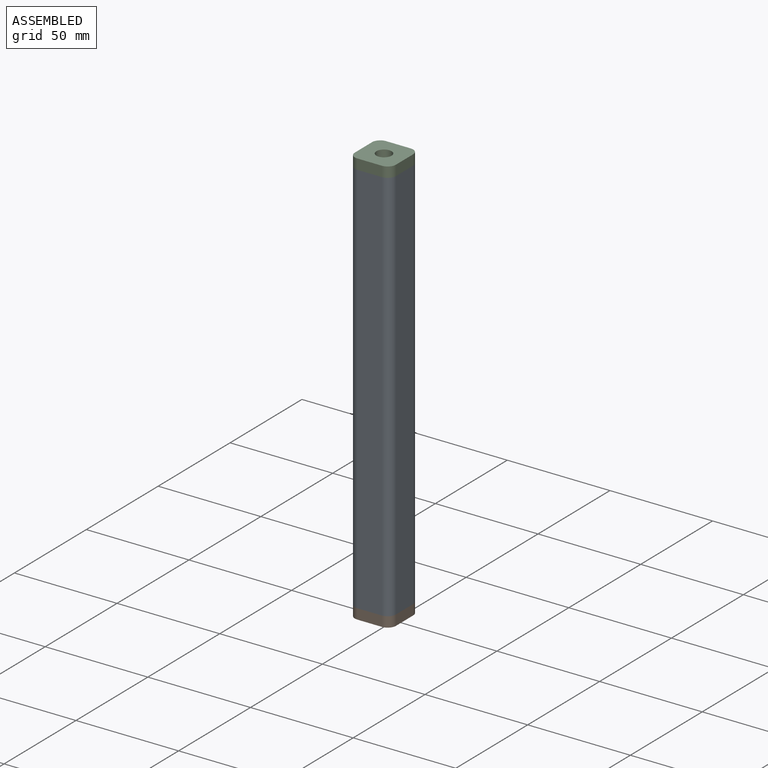
[diagram: assembled view]
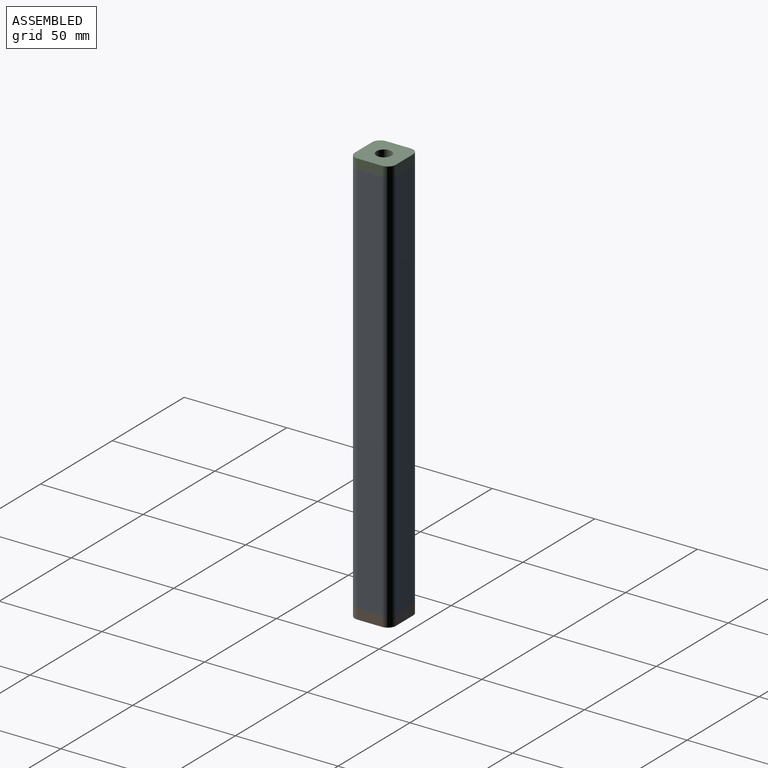
[diagram: assembled view, second angle]
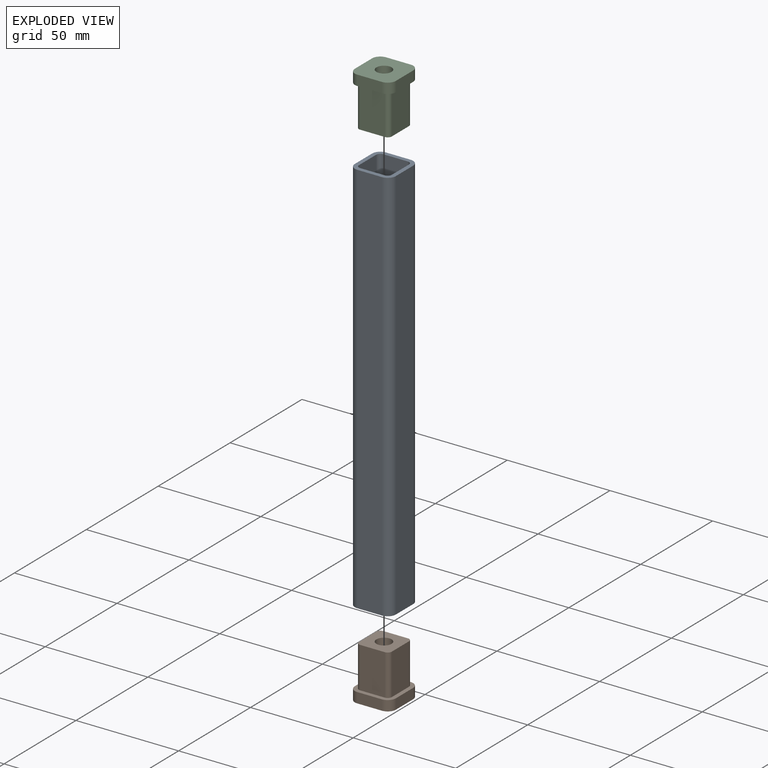
[diagram: exploded view]
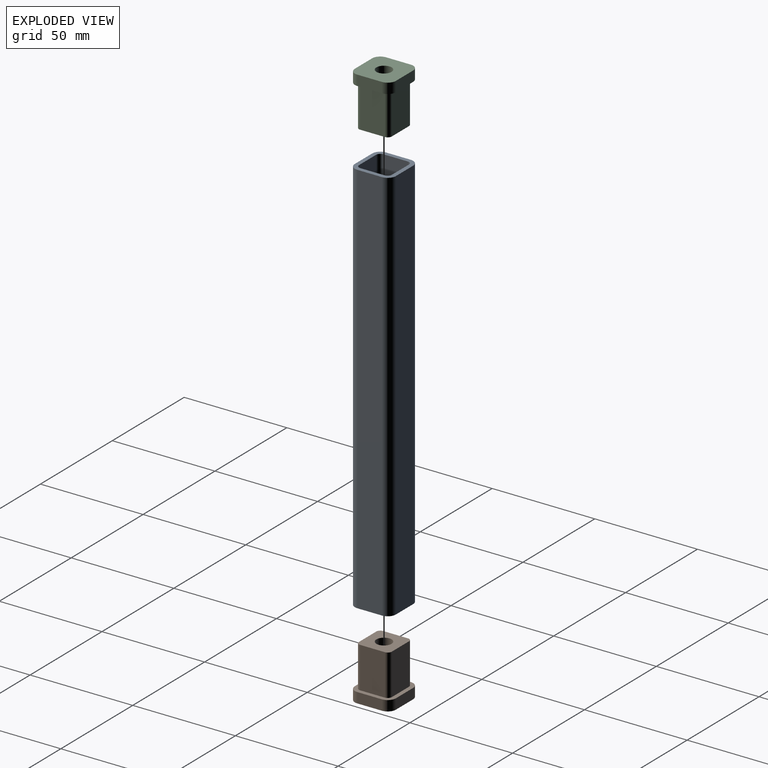
[diagram: exploded view, second angle]
ASSEMBLY  parts=3 mates=3
PART A: 18 faces, bbox 24.4x24.4x193 mm
  f0: plane 193x10.39mm, normal (-0.5,0.87,0), area 2316mm2, adj f4,f7,f16,f17
  f1: plane 193x10.39mm, normal (0.87,0.5,0), area 2316mm2, adj f4,f5,f16,f17
  f2: plane 193x10.39mm, normal (0.5,-0.87,0), area 2316mm2, adj f5,f6,f16,f17
  f3: plane 193x10.39mm, normal (-0.87,-0.5,0), area 2316mm2, adj f6,f7,f16,f17
  f4: cylinder r=4mm len=193mm, axis (0,0,1), area 1212.5mm2, adj f0,f1,f16,f17
  f5: cylinder r=4mm len=193mm, axis (0,0,1), area 1212.5mm2, adj f1,f2,f16,f17
  f6: cylinder r=4mm len=193mm, axis (0,0,1), area 1212.5mm2, adj f2,f3,f16,f17
  f7: cylinder r=4mm len=193mm, axis (0,0,1), area 1212.5mm2, adj f0,f3,f16,f17
  f8: plane 193x10.39mm, normal (0.87,0.5,0), area 2316mm2, adj f9,f15,f16,f17
  f9: cylinder r=2mm len=193mm, axis (0,0,1), area 606.3mm2, adj f8,f10,f16,f17
  f10: plane 193x10.39mm, normal (-0.5,0.87,0), area 2316mm2, adj f9,f11,f16,f17
  f11: cylinder r=2mm len=193mm, axis (0,0,1), area 606.3mm2, adj f10,f12,f16,f17
  f12: plane 193x10.39mm, normal (-0.87,-0.5,0), area 2316mm2, adj f11,f13,f16,f17
  f13: cylinder r=2mm len=193mm, axis (0,0,1), area 606.3mm2, adj f12,f14,f16,f17
  f14: plane 193x10.39mm, normal (0.5,-0.87,0), area 2316mm2, adj f13,f15,f16,f17
  f15: cylinder r=2mm len=193mm, axis (0,0,1), area 606.3mm2, adj f8,f14,f16,f17
  f16: plane 24.39x24.39mm, normal (0,0,1), area 133.7mm2, adj f0,f1,f2,f3,f4,f5,f6,f7
  f17: plane 24.39x24.39mm, normal (0,0,-1), area 133.7mm2, adj f0,f1,f2,f3,f4,f5,f6,f7
PART B: 20 faces, bbox 24.4x24.4x25 mm
  f0: cylinder r=4mm len=5.46mm, axis (0,0,-1), area 31.4mm2, adj f1,f7,f8,f9
  f1: plane 10.39x6mm, normal (-0.87,-0.5,0), area 60mm2, adj f0,f2,f8,f9
  f2: cylinder r=4mm len=5.46mm, axis (0,0,-1), area 31.4mm2, adj f1,f3,f8,f9
  f3: plane 10.39x6mm, normal (0.5,-0.87,0), area 60mm2, adj f2,f4,f8,f9
  f4: cylinder r=4mm len=5.46mm, axis (0,0,-1), area 31.4mm2, adj f3,f5,f8,f9
  f5: plane 10.39x6mm, normal (0.87,0.5,0), area 60mm2, adj f4,f6,f8,f9
  f6: cylinder r=4mm len=5.46mm, axis (0,0,-1), area 31.4mm2, adj f5,f7,f8,f9
  f7: plane 10.39x6mm, normal (-0.5,0.87,0), area 60mm2, adj f0,f6,f8,f9
  f8: plane 24.39x24.39mm, normal (0,0,1), area 133.7mm2, adj f0,f1,f2,f3,f4,f5,f6,f7
  f9: plane 24.39x24.39mm, normal (0,0,-1), area 343.2mm2, adj f0,f1,f2,f3,f4,f5,f6,f7
  f10: plane 20x10.39mm, normal (-0.5,0.87,0), area 240mm2, adj f8,f11,f17,f18
  f11: cylinder r=2mm len=20mm, axis (0,0,-1), area 62.8mm2, adj f8,f10,f12,f18
  f12: plane 20x10.39mm, normal (-0.87,-0.5,0), area 240mm2, adj f8,f11,f13,f18
  f13: cylinder r=2mm len=20mm, axis (0,0,-1), area 62.8mm2, adj f8,f12,f14,f18
  f14: plane 20x10.39mm, normal (0.5,-0.87,0), area 240mm2, adj f8,f13,f15,f18
  f15: cylinder r=2mm len=20mm, axis (0,0,-1), area 62.8mm2, adj f8,f14,f16,f18
  f16: plane 20x10.39mm, normal (0.87,0.5,0), area 240mm2, adj f8,f15,f17,f18
  f17: cylinder r=2mm len=20mm, axis (0,0,-1), area 62.8mm2, adj f8,f10,f16,f18
  f18: plane 20.39x20.39mm, normal (0,0,1), area 209.6mm2, adj f10,f11,f12,f13,f14,f15,f16,f17
  f19: cylinder r=3.7mm len=25mm, axis (0,0,-1), area 581.2mm2, adj f9,f18
PART C: same geometry as B
PLACE A rot(axis=(0,0,1),60deg) t=(-19.19,-2.44,0)mm fixed
PLACE B rot(axis=(0,0,1),60deg) t=(-324.39,-2.44,0)mm
PLACE C rot(axis=(-0.5,-0.87,0),180deg) t=(309.43,-2.44,2640.16)mm
MATE fastened B.f4 <-> A.f5  axis (0,0,1) through (-1.48,-11.85,1223.58)mm
MATE revolute C.f2 <-> A.f7  axis (0,0,-1) through (-13.48,-23.84,1416.58)mm
MATE revolute C.f6 <-> A.f5  axis (0,0,-1) through (-1.48,-11.85,1416.58)mm
